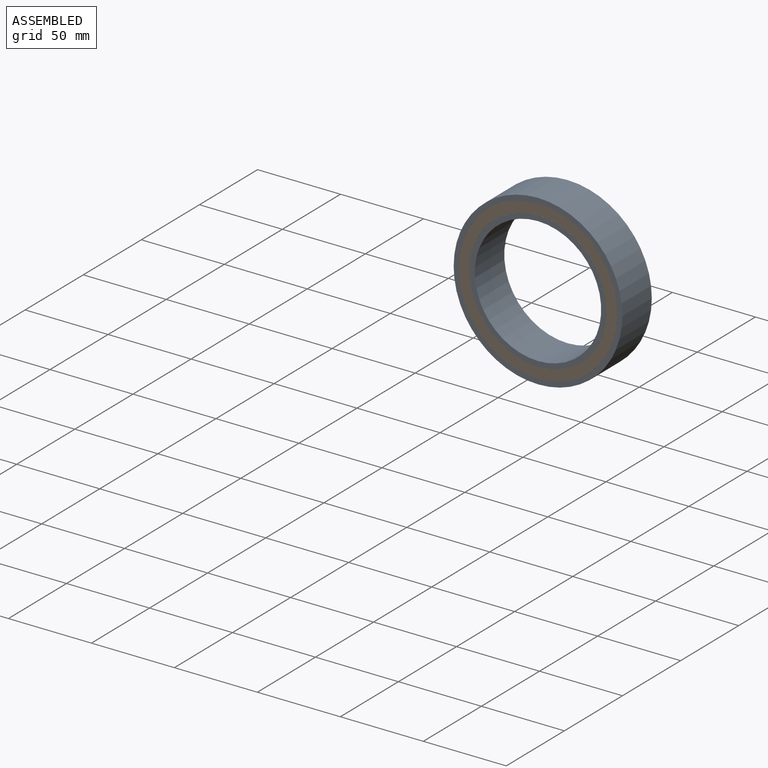
[diagram: assembled view]
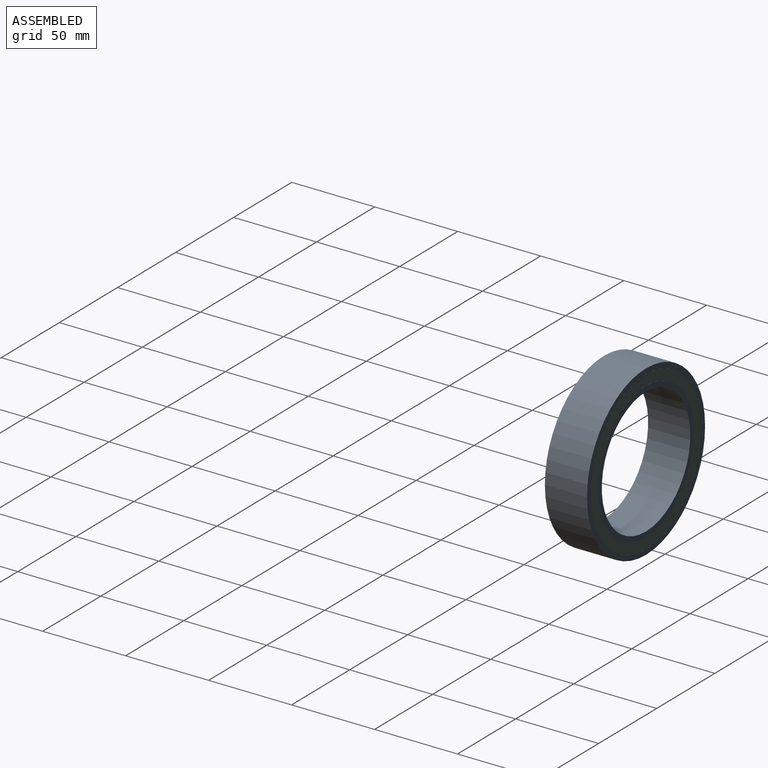
[diagram: assembled view, second angle]
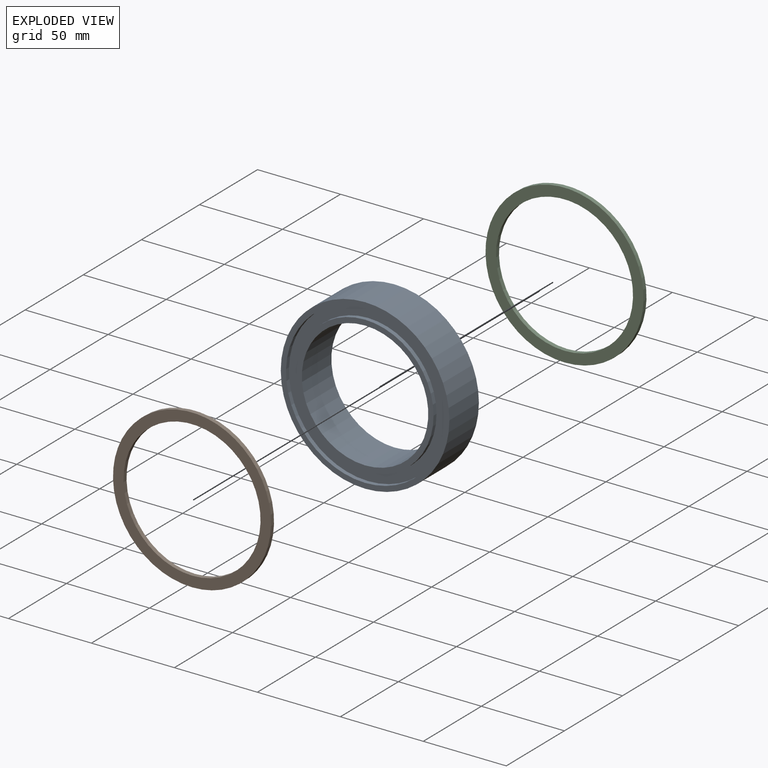
[diagram: exploded view]
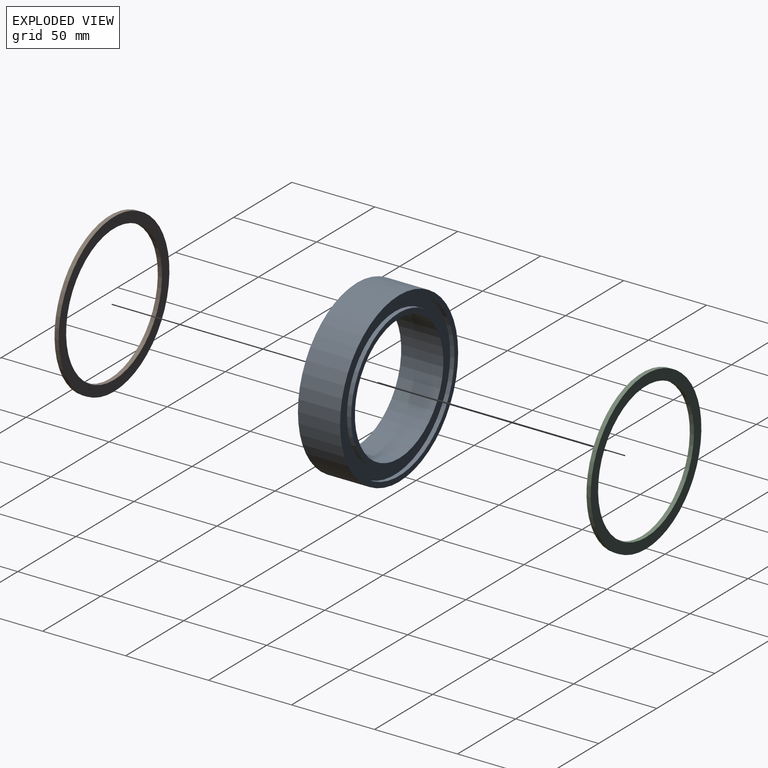
[diagram: exploded view, second angle]
ASSEMBLY  parts=3 mates=2
PART A: 12 faces, bbox 101.6x25.4x101.6 mm
  f0: plane 82.55x82.55mm, normal (0,1,0), area 791.7mm2, adj f3,f9
  f1: plane 82.55x82.55mm, normal (0,-1,0), area 791.7mm2, adj f3,f6
  f2: cylinder r=50.8mm len=101.6mm, axis (0,1,0), area 8107.3mm2, adj f4,f5
  f3: cylinder r=38.1mm len=76.2mm, axis (0,1,0), area 6080.5mm2, adj f0,f1
  f4: plane 101.6x101.6mm, normal (0,-1,0), area 981.7mm2, adj f2,f7
  f5: plane 101.6x101.6mm, normal (0,1,0), area 981.7mm2, adj f2,f10
  f6: cylinder r=41.27mm len=82.55mm, axis (0,-1,0), area 658.7mm2, adj f1,f8
  f7: cylinder r=47.62mm len=95.25mm, axis (0,-1,0), area 760.1mm2, adj f4,f8
  f8: plane 95.25x95.25mm, normal (0,-1,0), area 1773.5mm2, adj f6,f7
  f9: cylinder r=41.27mm len=82.55mm, axis (0,1,0), area 658.7mm2, adj f0,f11
  f10: cylinder r=47.62mm len=95.25mm, axis (0,1,0), area 760.1mm2, adj f5,f11
  f11: plane 95.25x95.25mm, normal (0,1,0), area 1773.5mm2, adj f9,f10
PART B: 4 faces, bbox 95.3x2.5x95.3 mm
  f0: cylinder r=41.27mm len=82.55mm, axis (0,1,0), area 658.7mm2, adj f2,f3
  f1: cylinder r=47.62mm len=95.25mm, axis (0,1,0), area 760.1mm2, adj f2,f3
  f2: plane 95.25x95.25mm, normal (0,-1,0), area 1773.5mm2, adj f0,f1
  f3: plane 95.25x95.25mm, normal (0,1,0), area 1773.5mm2, adj f0,f1
PART C: same geometry as B
PLACE A t=(-40.06,-4.47,8.93)mm
PLACE B t=(-40.06,-27.33,8.93)mm
PLACE C t=(-40.06,-4.47,8.93)mm
MATE fastened B.f1 <-> A.f6  axis (0,-1,0) through (-40.06,-29.87,8.93)mm
MATE fastened C.f1 <-> A.f6  axis (0,1,0) through (-40.06,-4.47,8.93)mm
